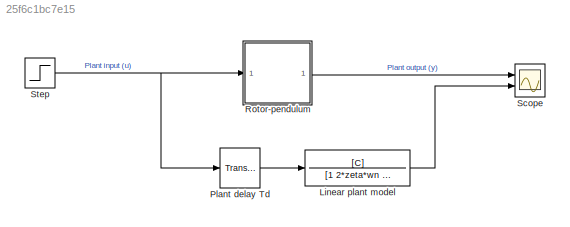
MODEL slx_25f6c1bc7e15
KIND model
CONFIG AbsTol = auto
CONFIG EnableMultiTasking = off
CONFIG FixedStep = auto
CONFIG MaxStep = auto
CONFIG MinStep = auto
CONFIG RelTol = 1e-3
CONFIG SampleTimeConstraint = Unconstrained
CONFIG SolverName = VariableStepAuto
CONFIG StartTime = 0.0
CONFIG StopTime = 10.0
BLOCK [TransferFcn] Linear plant model
  Denominator = [1 2*zeta*wn wn^2]
  Numerator = [C]
BLOCK [TransportDelay] Plant delay Td
  DelayTime = Td
  Ports = [1, 1]
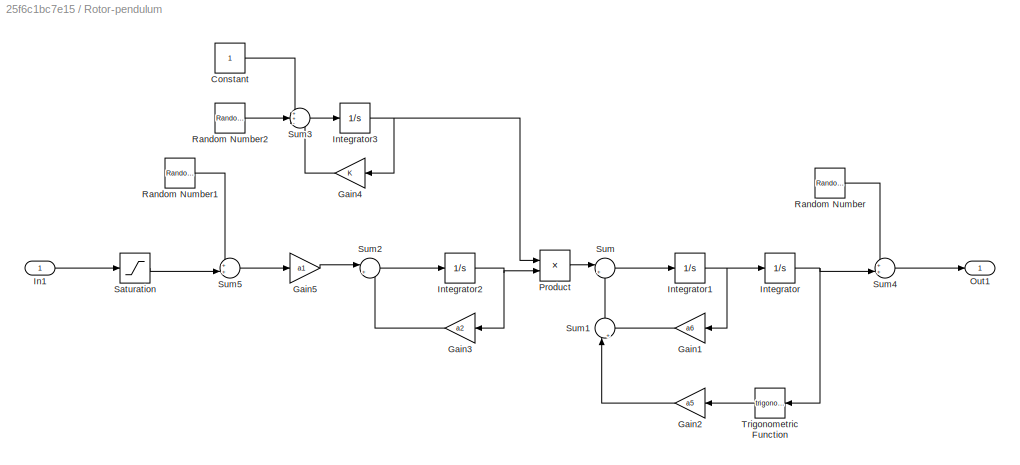
BLOCK [SubSystem] Rotor-pendulum
  Description = Rotor pendulum
  Ports = [1, 1]
  RequestExecContextInheritance = off
BLOCK [Constant] Rotor-pendulum/Constant
BLOCK [Gain] Rotor-pendulum/Gain1
  Gain = a6
  NameLocation = top
BLOCK [Gain] Rotor-pendulum/Gain2
  Gain = a5
  NameLocation = top
BLOCK [Gain] Rotor-pendulum/Gain3
  Gain = a2
  NameLocation = top
BLOCK [Gain] Rotor-pendulum/Gain4
  NameLocation = top
BLOCK [Gain] Rotor-pendulum/Gain5
  Gain = a1
BLOCK [Inport] Rotor-pendulum/In1
BLOCK [Integrator] Rotor-pendulum/Integrator
  Ports = [1, 1]
BLOCK [Integrator] Rotor-pendulum/Integrator1
  Ports = [1, 1]
BLOCK [Integrator] Rotor-pendulum/Integrator2
  Ports = [1, 1]
BLOCK [Integrator] Rotor-pendulum/Integrator3
  InitialCondition = 1
  Ports = [1, 1]
BLOCK [Outport] Rotor-pendulum/Out1
BLOCK [Product] Rotor-pendulum/Product
  Ports = [2, 1]
BLOCK [RandomNumber] Rotor-pendulum/Random Number
  SampleTime = 0.001
  Seed = round(cputime*100)
  Variance = 0.005^2
BLOCK [RandomNumber] Rotor-pendulum/Random Number1
  SampleTime = 0.001
  Seed = round(cputime*100)
  Variance = 0.5^2
BLOCK [RandomNumber] Rotor-pendulum/Random Number2
  SampleTime = 0.001
  Seed = round(cputime*100)
  Variance = 0.5^2
BLOCK [Saturate] Rotor-pendulum/Saturation
  LowerLimit = -15
  UpperLimit = 15
BLOCK [Sum] Rotor-pendulum/Sum
  Inputs = |+-
  Ports = [2, 1]
BLOCK [Sum] Rotor-pendulum/Sum1
  Inputs = |++
  NameLocation = right
  Ports = [2, 1]
BLOCK [Sum] Rotor-pendulum/Sum2
  Inputs = |+-
  Ports = [2, 1]
BLOCK [Sum] Rotor-pendulum/Sum3
  Inputs = ++-
  Ports = [3, 1]
BLOCK [Sum] Rotor-pendulum/Sum4
  Inputs = ++|
  Ports = [2, 1]
BLOCK [Sum] Rotor-pendulum/Sum5
  Inputs = ++|
  Ports = [2, 1]
BLOCK [Trigonometry] Rotor-pendulum/Trigonometric Function
  NameLocation = top
  Ports = [1, 1]
BLOCK [Scope] Scope
  Floating = off
  NumInputPorts = 2
  Ports = [2]
  ScopeSpecificationString = Simulink.scopes.TimeScopeBlockCfg('CurrentConfiguration', extmgr.ConfigurationSet(extmgr.Configuration('Core','General UI',true),extmgr.Configuration('Core','Source UI',true),extmgr.Configuration('Sources','WiredSimulink',true),extmgr.Configuration('Visuals','Time Domain',true,'SerializedDisplays',{struct('MinYLimReal','-0.17425','MaxYLimReal','1.42104','YLabelReal','','MinYLimMag','0.00000','MaxY...<+1419ch>
BLOCK [Step] Step
  After = 10
  SampleTime = 0
LINE Linear plant model:1 -> Scope:2
LINE Plant delay Td:1 -> Linear plant model:1
LINE Rotor-pendulum/Constant:1 -> Rotor-pendulum/Sum3:1
LINE Rotor-pendulum/Gain1:1 -> Rotor-pendulum/Sum1:2
LINE Rotor-pendulum/Gain2:1 -> Rotor-pendulum/Sum1:1
LINE Rotor-pendulum/Gain3:1 -> Rotor-pendulum/Sum2:2
LINE Rotor-pendulum/Gain4:1 -> Rotor-pendulum/Sum3:3
LINE Rotor-pendulum/Gain5:1 -> Rotor-pendulum/Sum2:1
LINE Rotor-pendulum/In1:1 -> Rotor-pendulum/Saturation:1
NET Rotor-pendulum/Integrator1:1 -> Rotor-pendulum/Gain1:1, Rotor-pendulum/Integrator:1
NET Rotor-pendulum/Integrator2:1 -> Rotor-pendulum/Gain3:1, Rotor-pendulum/Product:2
NET Rotor-pendulum/Integrator3:1 -> Rotor-pendulum/Gain4:1, Rotor-pendulum/Product:1
NET Rotor-pendulum/Integrator:1 -> Rotor-pendulum/Sum4:2, Rotor-pendulum/Trigonometric Function:1
LINE Rotor-pendulum/Product:1 -> Rotor-pendulum/Sum:1
LINE Rotor-pendulum/Random Number1:1 -> Rotor-pendulum/Sum5:1
LINE Rotor-pendulum/Random Number2:1 -> Rotor-pendulum/Sum3:2
LINE Rotor-pendulum/Random Number:1 -> Rotor-pendulum/Sum4:1
LINE Rotor-pendulum/Saturation:1 -> Rotor-pendulum/Sum5:2
LINE Rotor-pendulum/Sum1:1 -> Rotor-pendulum/Sum:2
LINE Rotor-pendulum/Sum2:1 -> Rotor-pendulum/Integrator2:1
LINE Rotor-pendulum/Sum3:1 -> Rotor-pendulum/Integrator3:1
LINE Rotor-pendulum/Sum4:1 -> Rotor-pendulum/Out1:1
LINE Rotor-pendulum/Sum5:1 -> Rotor-pendulum/Gain5:1
LINE Rotor-pendulum/Sum:1 -> Rotor-pendulum/Integrator1:1
LINE Rotor-pendulum/Trigonometric Function:1 -> Rotor-pendulum/Gain2:1
LINE Rotor-pendulum:1 -> Scope:1
NET Step:1 -> Plant delay Td:1, Rotor-pendulum:1
note: NET lines group one-source signal fan-out (src -> all destinations, sorted); 1:1 wires keep LINE
